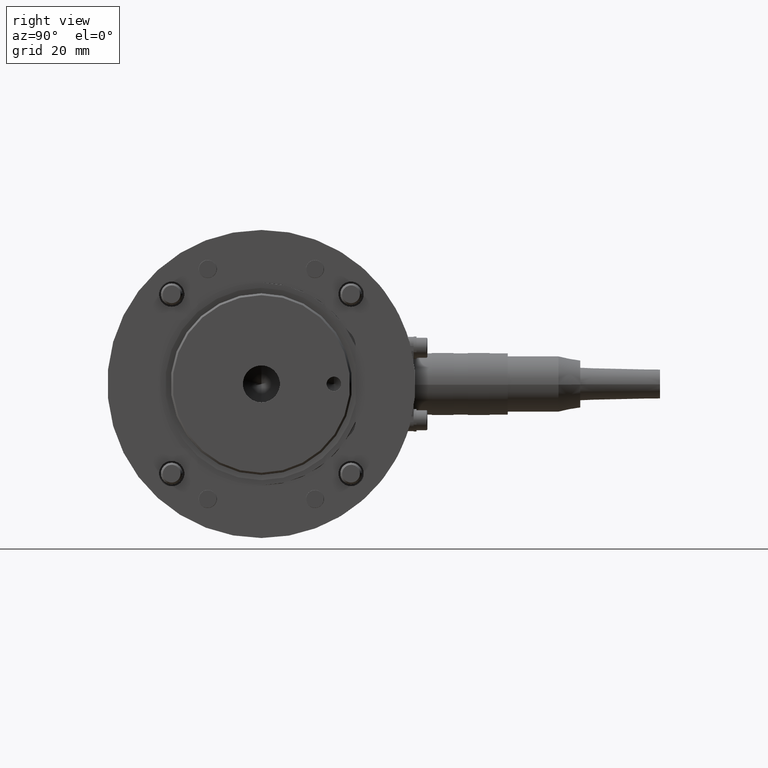
[diagram: clean part render]
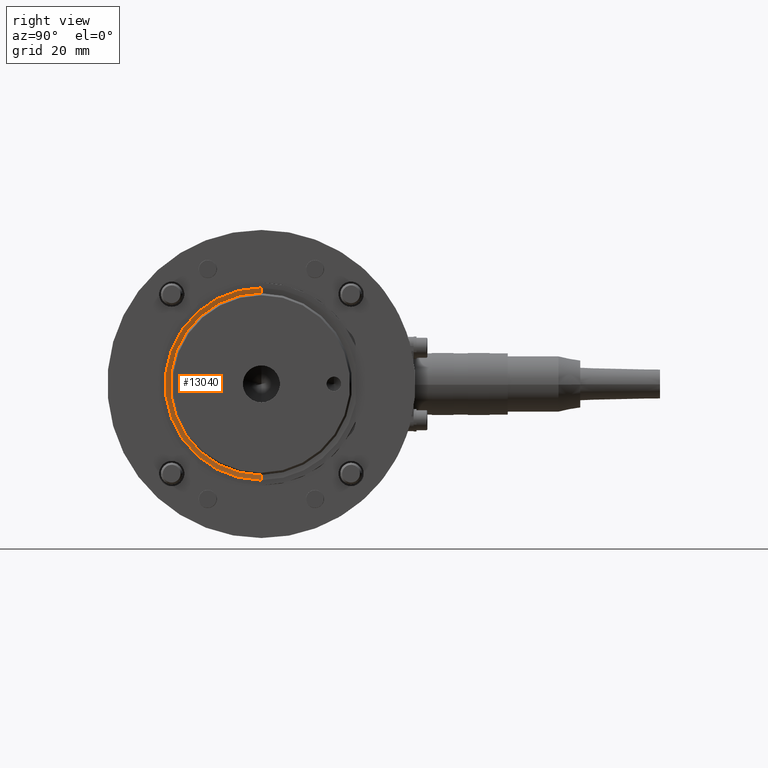
[diagram: same view with one face highlighted and labeled with its STEP entity id]
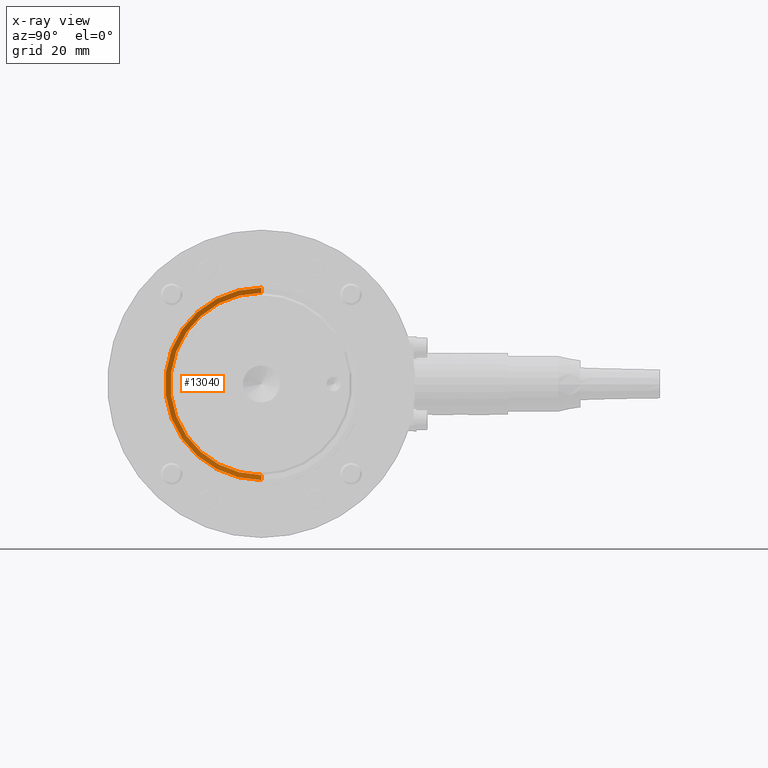
[diagram: x-ray of the same camera — body ghosted, the highlighted face saturated]
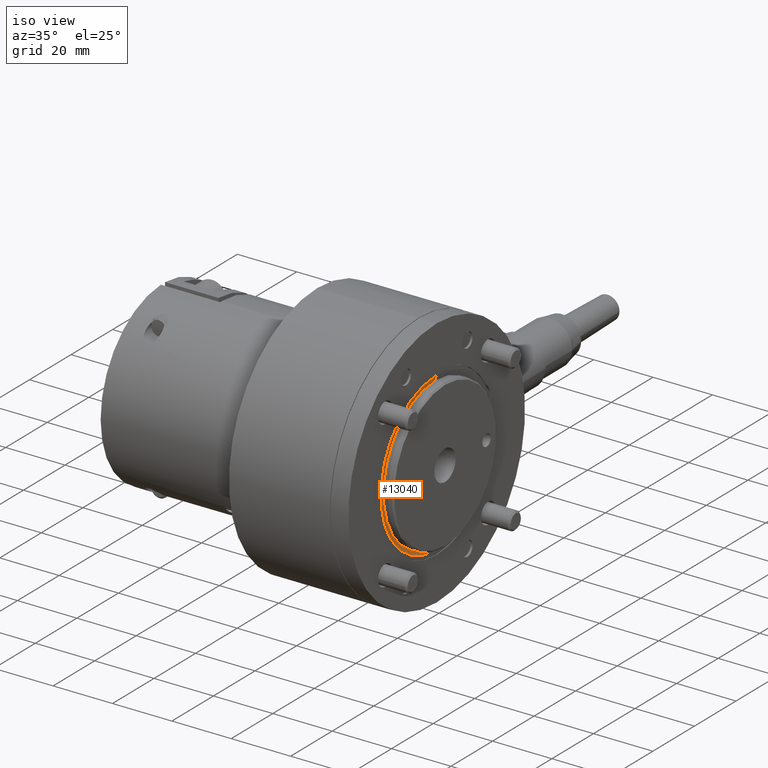
[diagram: same view with one face highlighted and labeled with its STEP entity id]
A machine part, right view. The second image highlights one B-rep face of the part: STEP entity #13040.
The next image is the same camera in x-ray: the body ghosted, the highlighted face saturated — about 0% of this face is hidden behind the body in this view.
A second angle (iso view) of the same face is appended — the face is thin or edge-on in the first view.
In plain terms, the highlighted conical surface has half-angle 82 deg.
Its self-contained STEP definition (entity closure, byte-faithful):
#39 = ORIENTED_EDGE ( 'NONE', *, *, #471, .F. ) ;
#421 = VERTEX_POINT ( 'NONE', #3321 ) ;
#471 = EDGE_CURVE ( 'NONE', #17954, #14396, #18068, .T. ) ;
#1478 = CARTESIAN_POINT ( 'NONE',  ( 58.80194638625170001, -3.469446951953614189E-15, -25.12783462019201863 ) ) ;
#2246 = VERTEX_POINT ( 'NONE', #16047 ) ;
#2377 = DIRECTION ( 'NONE',  ( 0.000000000000000000, 0.000000000000000000, 1.000000000000000000 ) ) ;
#2436 = ORIENTED_EDGE ( 'NONE', *, *, #15457, .F. ) ;
#3243 = FACE_OUTER_BOUND ( 'NONE', #13158, .T. ) ;
#3321 = CARTESIAN_POINT ( 'NONE',  ( 58.80194638625170001, -3.469446951953614189E-15, -25.12783462019201863 ) ) ;
#3908 = DIRECTION ( 'NONE',  ( -1.000000000000000000, -0.000000000000000000, 0.000000000000000000 ) ) ;
#4209 = AXIS2_PLACEMENT_3D ( 'NONE', #12362, #12544, #5151 ) ;
#4837 = DIRECTION ( 'NONE',  ( 0.000000000000000000, 0.000000000000000000, -1.000000000000000000 ) ) ;
#5151 = DIRECTION ( 'NONE',  ( 0.000000000000000000, 0.000000000000000000, 1.000000000000000000 ) ) ;
#5327 = DIRECTION ( 'NONE',  ( 0.1391731009600579994, 1.212728620682196447E-16, 0.9902680687415713612 ) ) ;
#5838 = CONICAL_SURFACE ( 'NONE', #11078, 25.12783462019201863, 1.431169986635357771 ) ;
#5841 = AXIS2_PLACEMENT_3D ( 'NONE', #15911, #3908, #2377 ) ;
#6243 = VECTOR ( 'NONE', #16738, 1000.000000000000000 ) ;
#7853 = CARTESIAN_POINT ( 'NONE',  ( 59.00000000000000000, -2.195944780599809176E-16, 26.53705930686551895 ) ) ;
#11078 = AXIS2_PLACEMENT_3D ( 'NONE', #13829, #18277, #4837 ) ;
#11096 = LINE ( 'NONE', #12778, #16040 ) ;
#12362 = CARTESIAN_POINT ( 'NONE',  ( 59.00000000000000000, -3.469446951953614189E-15, 0.000000000000000000 ) ) ;
#12544 = DIRECTION ( 'NONE',  ( -1.000000000000000000, -0.000000000000000000, 0.000000000000000000 ) ) ;
#12778 = CARTESIAN_POINT ( 'NONE',  ( 58.80194638625170001, -3.921747282413940178E-16, 25.12783462019201863 ) ) ;
#13040 = ADVANCED_FACE ( 'NONE', ( #3243 ), #5838, .F. ) ;
#13158 = EDGE_LOOP ( 'NONE', ( #14179, #13842, #39, #2436 ) ) ;
#13829 = CARTESIAN_POINT ( 'NONE',  ( 58.80194638625170001, -3.469446951953614189E-15, 0.000000000000000000 ) ) ;
#13842 = ORIENTED_EDGE ( 'NONE', *, *, #18933, .T. ) ;
#14058 = EDGE_CURVE ( 'NONE', #421, #2246, #15191, .T. ) ;
#14179 = ORIENTED_EDGE ( 'NONE', *, *, #14058, .T. ) ;
#14396 = VERTEX_POINT ( 'NONE', #7853 ) ;
#14695 = LINE ( 'NONE', #1478, #6243 ) ;
#14867 = CARTESIAN_POINT ( 'NONE',  ( 59.00000000000000000, -3.469446951953614189E-15, -26.53705930686551895 ) ) ;
#15191 = CIRCLE ( 'NONE', #5841, 25.12783462019201863 ) ;
#15457 = EDGE_CURVE ( 'NONE', #421, #17954, #14695, .T. ) ;
#15911 = CARTESIAN_POINT ( 'NONE',  ( 58.80194638625170001, -3.469446951953614189E-15, 0.000000000000000000 ) ) ;
#16040 = VECTOR ( 'NONE', #5327, 1000.000000000000000 ) ;
#16047 = CARTESIAN_POINT ( 'NONE',  ( 58.80194638625170001, -3.058846031506872951E-16, 25.12783462019201863 ) ) ;
#16738 = DIRECTION ( 'NONE',  ( 0.1391731009600579994, 0.000000000000000000, -0.9902680687415713612 ) ) ;
#17954 = VERTEX_POINT ( 'NONE', #14867 ) ;
#18068 = CIRCLE ( 'NONE', #4209, 26.53705930686551895 ) ;
#18277 = DIRECTION ( 'NONE',  ( 1.000000000000000000, 0.000000000000000000, -0.000000000000000000 ) ) ;
#18933 = EDGE_CURVE ( 'NONE', #2246, #14396, #11096, .T. ) ;